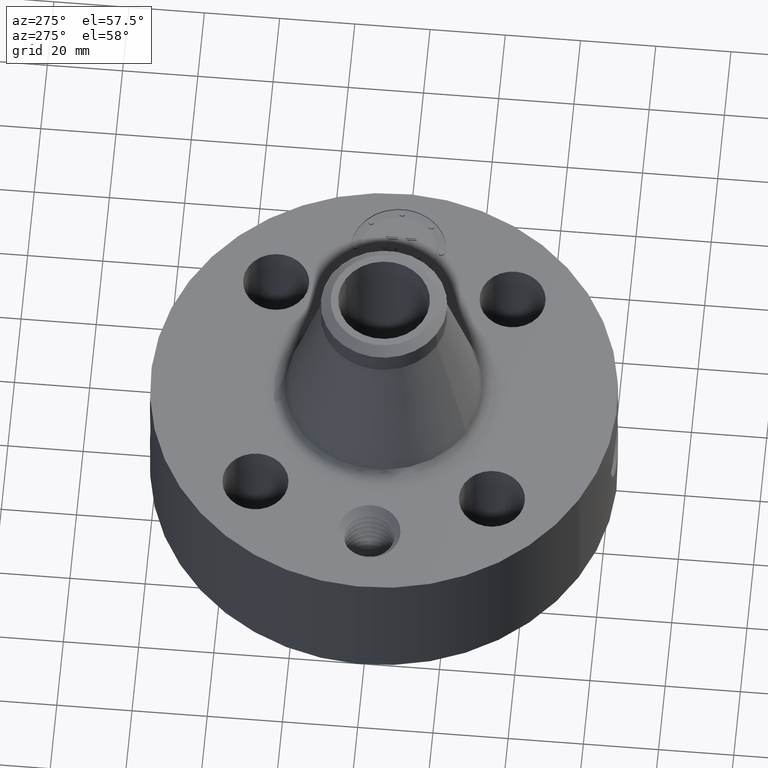
[diagram: clean part render]
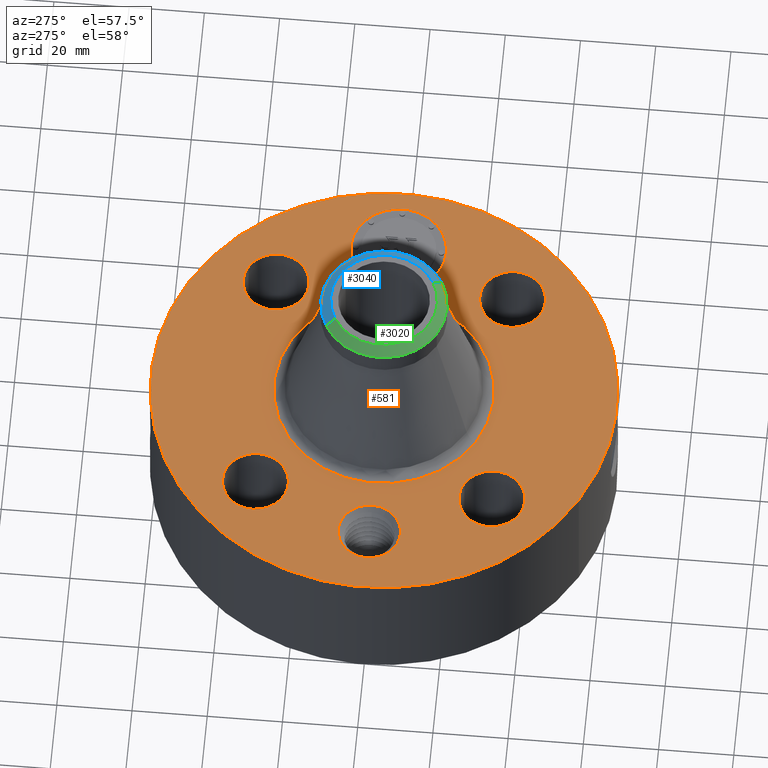
[diagram: same view with three faces highlighted in distinct colors, each labeled with its STEP entity id]
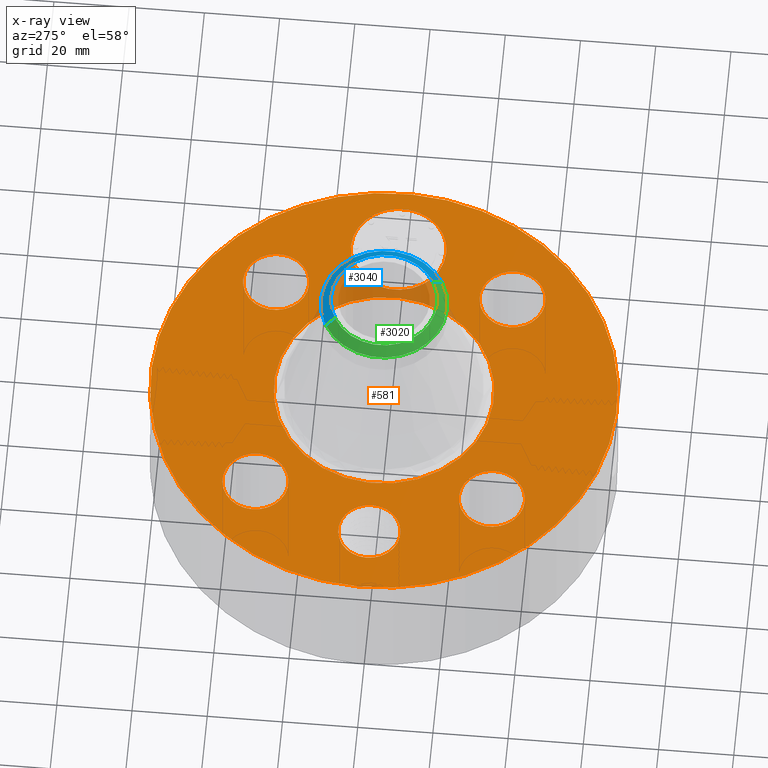
[diagram: x-ray of the same camera — body ghosted, the three highlighted faces saturated]
A machine part, auxiliary view with three faces highlighted in distinct colors.
The next image is the same camera in x-ray (body ghosted, the three faces saturated) — at least one of them is partly hidden behind the body in this view.
Their STEP definitions:

[orange] entity #581 — the highlighted planar face has unit normal (0, 0, -1).
#58=AXIS2_PLACEMENT_3D('Circle Axis2P3D',#56,#57,$) ;
#318=AXIS2_PLACEMENT_3D('Circle Axis2P3D',#316,#317,$) ;
#449=AXIS2_PLACEMENT_3D('Plane Axis2P3D',#446,#447,#448) ;
#457=AXIS2_PLACEMENT_3D('Circle Axis2P3D',#455,#456,$) ;
#466=AXIS2_PLACEMENT_3D('Circle Axis2P3D',#464,#465,$) ;
#475=AXIS2_PLACEMENT_3D('Circle Axis2P3D',#473,#474,$) ;
#484=AXIS2_PLACEMENT_3D('Circle Axis2P3D',#482,#483,$) ;
#493=AXIS2_PLACEMENT_3D('Circle Axis2P3D',#491,#492,$) ;
#502=AXIS2_PLACEMENT_3D('Circle Axis2P3D',#500,#501,$) ;
#511=AXIS2_PLACEMENT_3D('Circle Axis2P3D',#509,#510,$) ;
#520=AXIS2_PLACEMENT_3D('Circle Axis2P3D',#518,#519,$) ;
#529=AXIS2_PLACEMENT_3D('Circle Axis2P3D',#527,#528,$) ;
#538=AXIS2_PLACEMENT_3D('Circle Axis2P3D',#536,#537,$) ;
#547=AXIS2_PLACEMENT_3D('Circle Axis2P3D',#545,#546,$) ;
#556=AXIS2_PLACEMENT_3D('Circle Axis2P3D',#554,#555,$) ;
#565=AXIS2_PLACEMENT_3D('Circle Axis2P3D',#563,#564,$) ;
#574=AXIS2_PLACEMENT_3D('Circle Axis2P3D',#572,#573,$) ;
#53=CARTESIAN_POINT('Vertex',(-1.1697983142,-2.14130145102,1.56000000001)) ;
#56=CARTESIAN_POINT('Axis2P3D Location',(0.,0.,1.56000000001)) ;
#60=CARTESIAN_POINT('Vertex',(1.1697983142,2.14130145102,1.56000000001)) ;
#316=CARTESIAN_POINT('Axis2P3D Location',(0.,0.,1.56000000001)) ;
#446=CARTESIAN_POINT('Axis2P3D Location',(0.,2.44000000001,1.56000000001)) ;
#455=CARTESIAN_POINT('Axis2P3D Location',(-1.75000000001,-2.79741234551E-016,1.56000000001)) ;
#459=CARTESIAN_POINT('Vertex',(-2.03576282172,0.156112941009,1.56000000001)) ;
#461=CARTESIAN_POINT('Vertex',(-1.46423717829,-0.156112941009,1.56000000001)) ;
#464=CARTESIAN_POINT('Axis2P3D Location',(-1.75000000001,-2.79741234551E-016,1.56000000001)) ;
#473=CARTESIAN_POINT('Axis2P3D Location',(1.23743686708,-1.23743686708,1.56000000001)) ;
#477=CARTESIAN_POINT('Vertex',(0.934670883228,-1.07203505626,1.56000000001)) ;
#479=CARTESIAN_POINT('Vertex',(1.54020285093,-1.4028386779,1.56000000001)) ;
#482=CARTESIAN_POINT('Axis2P3D Location',(1.23743686708,-1.23743686708,1.56000000001)) ;
#491=CARTESIAN_POINT('Axis2P3D Location',(0.,0.,1.56000000001)) ;
#495=CARTESIAN_POINT('Vertex',(-0.551878272916,-1.01020640245,1.56000000001)) ;
#497=CARTESIAN_POINT('Vertex',(0.551878272916,1.01020640245,1.56000000001)) ;
#500=CARTESIAN_POINT('Axis2P3D Location',(0.,0.,1.56000000001)) ;
#509=CARTESIAN_POINT('Axis2P3D Location',(-1.23743686708,-1.23743686708,1.56000000001)) ;
#513=CARTESIAN_POINT('Vertex',(-1.4028386779,-1.54020285093,1.56000000001)) ;
#515=CARTESIAN_POINT('Vertex',(-1.07203505626,-0.934670883228,1.56000000001)) ;
#518=CARTESIAN_POINT('Axis2P3D Location',(-1.23743686708,-1.23743686708,1.56000000001)) ;
#527=CARTESIAN_POINT('Axis2P3D Location',(-1.23743686708,1.23743686708,1.56000000001)) ;
#531=CARTESIAN_POINT('Vertex',(-1.54020285093,1.4028386779,1.56000000001)) ;
#533=CARTESIAN_POINT('Vertex',(-0.934670883228,1.07203505626,1.56000000001)) ;
#536=CARTESIAN_POINT('Axis2P3D Location',(-1.23743686708,1.23743686708,1.56000000001)) ;
#545=CARTESIAN_POINT('Axis2P3D Location',(1.23743686708,1.23743686708,1.56000000001)) ;
#549=CARTESIAN_POINT('Vertex',(1.4028386779,1.54020285093,1.56000000001)) ;
#551=CARTESIAN_POINT('Vertex',(1.07203505626,0.934670883228,1.56000000001)) ;
#554=CARTESIAN_POINT('Axis2P3D Location',(1.23743686708,1.23743686708,1.56000000001)) ;
#563=CARTESIAN_POINT('Axis2P3D Location',(1.75000000001,-4.75560098737E-015,1.56000000001)) ;
#567=CARTESIAN_POINT('Vertex',(1.75000000001,0.499999995002,1.56000000001)) ;
#569=CARTESIAN_POINT('Vertex',(1.75000000001,-0.499999995002,1.56000000001)) ;
#572=CARTESIAN_POINT('Axis2P3D Location',(1.75000000001,-4.19611851827E-015,1.56000000001)) ;
#57=DIRECTION('Axis2P3D Direction',(0.,0.,-0.0393700787402)) ;
#317=DIRECTION('Axis2P3D Direction',(0.,0.,-0.0393700787402)) ;
#447=DIRECTION('Axis2P3D Direction',(0.,0.,-0.0393700787402)) ;
#448=DIRECTION('Axis2P3D XDirection',(0.0393700787402,0.,0.)) ;
#456=DIRECTION('Axis2P3D Direction',(0.,0.,-0.0393700787402)) ;
#465=DIRECTION('Axis2P3D Direction',(0.,0.,-0.0393700787402)) ;
#474=DIRECTION('Axis2P3D Direction',(0.,0.,-0.0393700787402)) ;
#483=DIRECTION('Axis2P3D Direction',(0.,0.,-0.0393700787402)) ;
#492=DIRECTION('Axis2P3D Direction',(0.,0.,-0.0393700787402)) ;
#501=DIRECTION('Axis2P3D Direction',(0.,0.,-0.0393700787402)) ;
#510=DIRECTION('Axis2P3D Direction',(0.,0.,-0.0393700787402)) ;
#519=DIRECTION('Axis2P3D Direction',(0.,0.,-0.0393700787402)) ;
#528=DIRECTION('Axis2P3D Direction',(0.,0.,-0.0393700787402)) ;
#537=DIRECTION('Axis2P3D Direction',(0.,0.,-0.0393700787402)) ;
#546=DIRECTION('Axis2P3D Direction',(0.,0.,-0.0393700787402)) ;
#555=DIRECTION('Axis2P3D Direction',(0.,0.,-0.0393700787402)) ;
#564=DIRECTION('Axis2P3D Direction',(0.,0.,-0.0393700787402)) ;
#573=DIRECTION('Axis2P3D Direction',(0.,0.,-0.0393700787402)) ;
#452=ORIENTED_EDGE('',*,*,#320,.F.) ;
#453=ORIENTED_EDGE('',*,*,#62,.F.) ;
#470=ORIENTED_EDGE('',*,*,#463,.T.) ;
#471=ORIENTED_EDGE('',*,*,#468,.T.) ;
#488=ORIENTED_EDGE('',*,*,#481,.T.) ;
#489=ORIENTED_EDGE('',*,*,#486,.T.) ;
#506=ORIENTED_EDGE('',*,*,#499,.T.) ;
#507=ORIENTED_EDGE('',*,*,#504,.T.) ;
#524=ORIENTED_EDGE('',*,*,#517,.T.) ;
#525=ORIENTED_EDGE('',*,*,#522,.T.) ;
#542=ORIENTED_EDGE('',*,*,#535,.T.) ;
#543=ORIENTED_EDGE('',*,*,#540,.T.) ;
#560=ORIENTED_EDGE('',*,*,#553,.T.) ;
#561=ORIENTED_EDGE('',*,*,#558,.T.) ;
#578=ORIENTED_EDGE('',*,*,#571,.T.) ;
#579=ORIENTED_EDGE('',*,*,#576,.T.) ;
#472=FACE_BOUND('',#469,.T.) ;
#490=FACE_BOUND('',#487,.T.) ;
#508=FACE_BOUND('',#505,.T.) ;
#526=FACE_BOUND('',#523,.T.) ;
#544=FACE_BOUND('',#541,.T.) ;
#562=FACE_BOUND('',#559,.T.) ;
#580=FACE_BOUND('',#577,.T.) ;
#581=ADVANCED_FACE('PartBody',(#454,#472,#490,#508,#526,#544,#562,#580),#450,.F.) ;
#59=CIRCLE('generated circle',#58,2.44000000001) ;
#319=CIRCLE('generated circle',#318,2.44000000001) ;
#458=CIRCLE('generated circle',#457,0.325625000001) ;
#467=CIRCLE('generated circle',#466,0.325625000001) ;
#476=CIRCLE('generated circle',#475,0.345000000001) ;
#485=CIRCLE('generated circle',#484,0.345000000001) ;
#494=CIRCLE('generated circle',#493,1.15112406094) ;
#503=CIRCLE('generated circle',#502,1.15112406094) ;
#512=CIRCLE('generated circle',#511,0.345000000001) ;
#521=CIRCLE('generated circle',#520,0.345000000001) ;
#530=CIRCLE('generated circle',#529,0.345000000001) ;
#539=CIRCLE('generated circle',#538,0.345000000001) ;
#548=CIRCLE('generated circle',#547,0.345000000001) ;
#557=CIRCLE('generated circle',#556,0.345000000001) ;
#566=CIRCLE('generated circle',#565,0.499999995002) ;
#575=CIRCLE('generated circle',#574,0.499999995002) ;
#62=EDGE_CURVE('',#54,#61,#59,.T.) ;
#320=EDGE_CURVE('',#61,#54,#319,.T.) ;
#463=EDGE_CURVE('',#460,#462,#458,.T.) ;
#468=EDGE_CURVE('',#462,#460,#467,.T.) ;
#481=EDGE_CURVE('',#478,#480,#476,.T.) ;
#486=EDGE_CURVE('',#480,#478,#485,.T.) ;
#499=EDGE_CURVE('',#496,#498,#494,.T.) ;
#504=EDGE_CURVE('',#498,#496,#503,.T.) ;
#517=EDGE_CURVE('',#514,#516,#512,.T.) ;
#522=EDGE_CURVE('',#516,#514,#521,.T.) ;
#535=EDGE_CURVE('',#532,#534,#530,.T.) ;
#540=EDGE_CURVE('',#534,#532,#539,.T.) ;
#553=EDGE_CURVE('',#550,#552,#548,.T.) ;
#558=EDGE_CURVE('',#552,#550,#557,.T.) ;
#571=EDGE_CURVE('',#568,#570,#566,.T.) ;
#576=EDGE_CURVE('',#570,#568,#575,.T.) ;
#451=EDGE_LOOP('',(#452,#453)) ;
#469=EDGE_LOOP('',(#470,#471)) ;
#487=EDGE_LOOP('',(#488,#489)) ;
#505=EDGE_LOOP('',(#506,#507)) ;
#523=EDGE_LOOP('',(#524,#525)) ;
#541=EDGE_LOOP('',(#542,#543)) ;
#559=EDGE_LOOP('',(#560,#561)) ;
#577=EDGE_LOOP('',(#578,#579)) ;
#454=FACE_OUTER_BOUND('',#451,.T.) ;
#450=PLANE('',#449) ;
#54=VERTEX_POINT('',#53) ;
#61=VERTEX_POINT('',#60) ;
#460=VERTEX_POINT('',#459) ;
#462=VERTEX_POINT('',#461) ;
#478=VERTEX_POINT('',#477) ;
#480=VERTEX_POINT('',#479) ;
#496=VERTEX_POINT('',#495) ;
#498=VERTEX_POINT('',#497) ;
#514=VERTEX_POINT('',#513) ;
#516=VERTEX_POINT('',#515) ;
#532=VERTEX_POINT('',#531) ;
#534=VERTEX_POINT('',#533) ;
#550=VERTEX_POINT('',#549) ;
#552=VERTEX_POINT('',#551) ;
#568=VERTEX_POINT('',#567) ;
#570=VERTEX_POINT('',#569) ;

[blue] entity #3040 — the highlighted conical surface has half-angle 52.5 deg.
#2151=AXIS2_PLACEMENT_3D('Circle Axis2P3D',#2149,#2150,$) ;
#2985=AXIS2_PLACEMENT_3D('Cone Axis2P3D',#2982,#2983,#2984) ;
#3023=AXIS2_PLACEMENT_3D('Circle Axis2P3D',#3021,#3022,$) ;
#3030=AXIS2_PLACEMENT_3D('Circle Axis2P3D',#3028,#3029,$) ;
#2149=CARTESIAN_POINT('Axis2P3D Location',(0.,0.,3.31000000001)) ;
#2153=CARTESIAN_POINT('Vertex',(0.267155162633,-0.489024244991,3.31000000001)) ;
#2155=CARTESIAN_POINT('Vertex',(-0.267155162633,0.489024244991,3.31000000001)) ;
#2982=CARTESIAN_POINT('Axis2P3D Location',(0.,0.,3.31000000001)) ;
#2987=CARTESIAN_POINT('Line Origine',(0.291788009056,-0.534114367921,3.27057479979)) ;
#2991=CARTESIAN_POINT('Vertex',(0.31642085548,-0.57920449085,3.23114959957)) ;
#2994=CARTESIAN_POINT('Line Origine',(-0.291788009056,0.534114367921,3.27057479979)) ;
#2998=CARTESIAN_POINT('Vertex',(-0.31642085548,0.57920449085,3.23114959957)) ;
#3021=CARTESIAN_POINT('Axis2P3D Location',(0.,0.,3.23114959957)) ;
#3025=CARTESIAN_POINT('Vertex',(0.31642085548,0.57920449085,3.23114959957)) ;
#3028=CARTESIAN_POINT('Axis2P3D Location',(0.,0.,3.23114959957)) ;
#2150=DIRECTION('Axis2P3D Direction',(0.,0.,-0.0393700787402)) ;
#2983=DIRECTION('Axis2P3D Direction',(-0.,-0.,-0.0393700787402)) ;
#2984=DIRECTION('Axis2P3D XDirection',(-0.0188750212049,0.0345504945626,0.)) ;
#2988=DIRECTION('Vector Direction',(0.014974561121,-0.02741075027,-0.023966985394)) ;
#2995=DIRECTION('Vector Direction',(-0.014974561121,0.02741075027,-0.023966985394)) ;
#3022=DIRECTION('Axis2P3D Direction',(0.,0.,-0.0393700787402)) ;
#3029=DIRECTION('Axis2P3D Direction',(0.,0.,-0.0393700787402)) ;
#2989=VECTOR('Line Direction',#2988,0.0393700787402) ;
#2996=VECTOR('Line Direction',#2995,0.0393700787402) ;
#3034=ORIENTED_EDGE('',*,*,#3000,.F.) ;
#3035=ORIENTED_EDGE('',*,*,#2157,.F.) ;
#3036=ORIENTED_EDGE('',*,*,#2993,.T.) ;
#3037=ORIENTED_EDGE('',*,*,#3027,.T.) ;
#3038=ORIENTED_EDGE('',*,*,#3032,.F.) ;
#3040=ADVANCED_FACE('PartBody',(#3039),#2986,.T.) ;
#2152=CIRCLE('generated circle',#2151,0.557240157482) ;
#3024=CIRCLE('generated circle',#3023,0.660000000003) ;
#3031=CIRCLE('generated circle',#3030,0.660000000003) ;
#2986=CONICAL_SURFACE('Cone',#2985,0.557240157482,0.916297857297) ;
#2157=EDGE_CURVE('',#2154,#2156,#2152,.F.) ;
#2993=EDGE_CURVE('',#2154,#2992,#2990,.T.) ;
#3000=EDGE_CURVE('',#2156,#2999,#2997,.T.) ;
#3027=EDGE_CURVE('',#2992,#3026,#3024,.F.) ;
#3032=EDGE_CURVE('',#2999,#3026,#3031,.T.) ;
#3033=EDGE_LOOP('',(#3034,#3035,#3036,#3037,#3038)) ;
#3039=FACE_OUTER_BOUND('',#3033,.T.) ;
#2990=LINE('Line',#2987,#2989) ;
#2997=LINE('Line',#2994,#2996) ;
#2154=VERTEX_POINT('',#2153) ;
#2156=VERTEX_POINT('',#2155) ;
#2992=VERTEX_POINT('',#2991) ;
#2999=VERTEX_POINT('',#2998) ;
#3026=VERTEX_POINT('',#3025) ;

[green] entity #3020 — the highlighted conical surface has half-angle 52.5 deg.
#2160=AXIS2_PLACEMENT_3D('Circle Axis2P3D',#2158,#2159,$) ;
#2985=AXIS2_PLACEMENT_3D('Cone Axis2P3D',#2982,#2983,#2984) ;
#3003=AXIS2_PLACEMENT_3D('Circle Axis2P3D',#3001,#3002,$) ;
#3010=AXIS2_PLACEMENT_3D('Circle Axis2P3D',#3008,#3009,$) ;
#2153=CARTESIAN_POINT('Vertex',(0.267155162633,-0.489024244991,3.31000000001)) ;
#2155=CARTESIAN_POINT('Vertex',(-0.267155162633,0.489024244991,3.31000000001)) ;
#2158=CARTESIAN_POINT('Axis2P3D Location',(0.,0.,3.31000000001)) ;
#2982=CARTESIAN_POINT('Axis2P3D Location',(0.,0.,3.31000000001)) ;
#2987=CARTESIAN_POINT('Line Origine',(0.291788009056,-0.534114367921,3.27057479979)) ;
#2991=CARTESIAN_POINT('Vertex',(0.31642085548,-0.57920449085,3.23114959957)) ;
#2994=CARTESIAN_POINT('Line Origine',(-0.291788009056,0.534114367921,3.27057479979)) ;
#2998=CARTESIAN_POINT('Vertex',(-0.31642085548,0.57920449085,3.23114959957)) ;
#3001=CARTESIAN_POINT('Axis2P3D Location',(0.,0.,3.23114959957)) ;
#3005=CARTESIAN_POINT('Vertex',(-0.31642085548,-0.57920449085,3.23114959957)) ;
#3008=CARTESIAN_POINT('Axis2P3D Location',(0.,0.,3.23114959957)) ;
#2159=DIRECTION('Axis2P3D Direction',(0.,0.,-0.0393700787402)) ;
#2983=DIRECTION('Axis2P3D Direction',(-0.,-0.,-0.0393700787402)) ;
#2984=DIRECTION('Axis2P3D XDirection',(-0.0188750212049,0.0345504945626,0.)) ;
#2988=DIRECTION('Vector Direction',(0.014974561121,-0.02741075027,-0.023966985394)) ;
#2995=DIRECTION('Vector Direction',(-0.014974561121,0.02741075027,-0.023966985394)) ;
#3002=DIRECTION('Axis2P3D Direction',(0.,0.,-0.0393700787402)) ;
#3009=DIRECTION('Axis2P3D Direction',(0.,0.,-0.0393700787402)) ;
#2989=VECTOR('Line Direction',#2988,0.0393700787402) ;
#2996=VECTOR('Line Direction',#2995,0.0393700787402) ;
#3014=ORIENTED_EDGE('',*,*,#2993,.F.) ;
#3015=ORIENTED_EDGE('',*,*,#2162,.F.) ;
#3016=ORIENTED_EDGE('',*,*,#3000,.T.) ;
#3017=ORIENTED_EDGE('',*,*,#3007,.T.) ;
#3018=ORIENTED_EDGE('',*,*,#3012,.F.) ;
#3020=ADVANCED_FACE('PartBody',(#3019),#2986,.T.) ;
#2161=CIRCLE('generated circle',#2160,0.557240157482) ;
#3004=CIRCLE('generated circle',#3003,0.660000000003) ;
#3011=CIRCLE('generated circle',#3010,0.660000000003) ;
#2986=CONICAL_SURFACE('Cone',#2985,0.557240157482,0.916297857297) ;
#2162=EDGE_CURVE('',#2156,#2154,#2161,.F.) ;
#2993=EDGE_CURVE('',#2154,#2992,#2990,.T.) ;
#3000=EDGE_CURVE('',#2156,#2999,#2997,.T.) ;
#3007=EDGE_CURVE('',#2999,#3006,#3004,.F.) ;
#3012=EDGE_CURVE('',#2992,#3006,#3011,.T.) ;
#3013=EDGE_LOOP('',(#3014,#3015,#3016,#3017,#3018)) ;
#3019=FACE_OUTER_BOUND('',#3013,.T.) ;
#2990=LINE('Line',#2987,#2989) ;
#2997=LINE('Line',#2994,#2996) ;
#2154=VERTEX_POINT('',#2153) ;
#2156=VERTEX_POINT('',#2155) ;
#2992=VERTEX_POINT('',#2991) ;
#2999=VERTEX_POINT('',#2998) ;
#3006=VERTEX_POINT('',#3005) ;